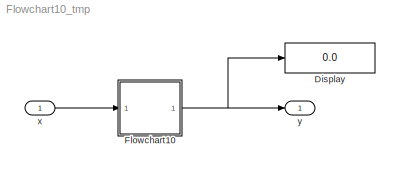
MODEL Flowchart10_tmp
KIND model
BLOCK [Display] Display
  Decimation = 1
  Ports = [1]
  SID = 1
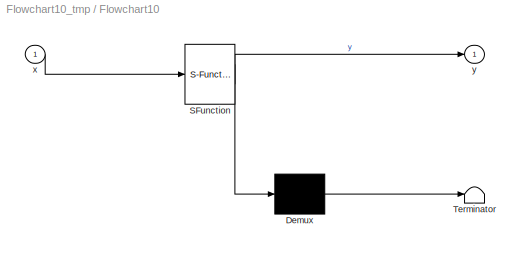
BLOCK [SubSystem] Flowchart10
  ErrorFcn = Stateflow.Translate.translate
  PermitHierarchicalResolution = ParametersOnly
  Ports = [1, 1]
  RequestExecContextInheritance = off
  SFBlockType = Chart
  SID = 2
  TreatAsAtomicUnit = on
  Variant = off
BLOCK [Demux] Flowchart10/ Demux 
  Outputs = 1
  Ports = [1, 1]
  SID = 2::10
BLOCK [S-Function] Flowchart10/ SFunction 
  EnableBusSupport = off
  FunctionName = sf_sfun
  PortCounts = [1 2]
  Ports = [1, 2]
  SFunctionDeploymentMode = off
  SID = 2::9
  Tag = Stateflow S-Function Flowchart10_tmp 1
BLOCK [Terminator] Flowchart10/ Terminator 
  SID = 2::11
BLOCK [Inport] Flowchart10/x
  IconDisplay = Port number
  SID = 2::1
BLOCK [Outport] Flowchart10/y
  IconDisplay = Port number
  SID = 2::5
BLOCK [Inport] x
  IconDisplay = Port number
  SID = 5
BLOCK [Outport] y
  IconDisplay = Port number
  SID = 4
LINE Flowchart10/ Demux :1 -> Flowchart10/ Terminator :1
LINE Flowchart10/ SFunction :1 -> Flowchart10/ Demux :1
LINE Flowchart10/ SFunction :2 -> Flowchart10/y:1
LINE Flowchart10/x:1 -> Flowchart10/ SFunction :1
NET Flowchart10:1 -> Display:1, y:1
LINE x:1 -> Flowchart10:1
note: NET lines group one-source signal fan-out (src -> all destinations, sorted); 1:1 wires keep LINE
CHART Flowchart10 states=1 transitions=4
  STATE_LABEL 'A'
